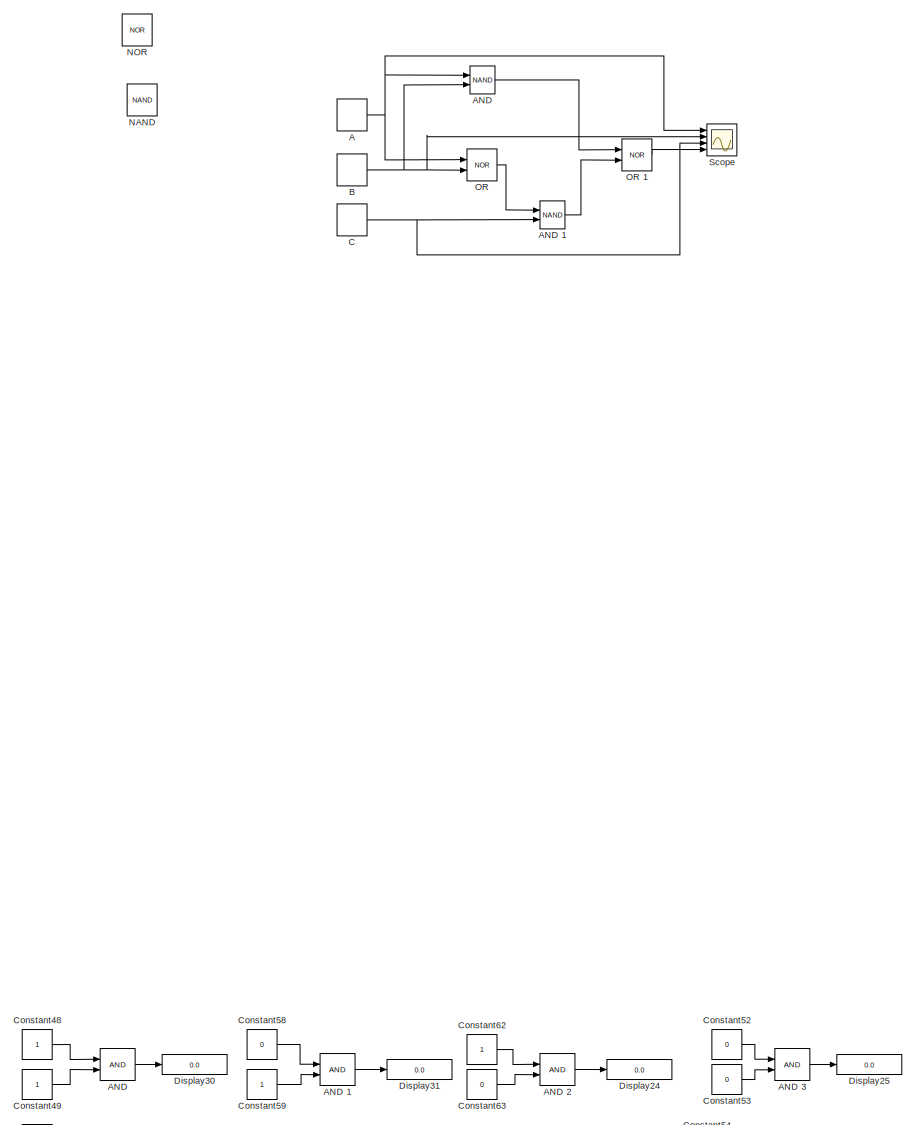
[diagram: root canvas - part 1/3, left side, full height]
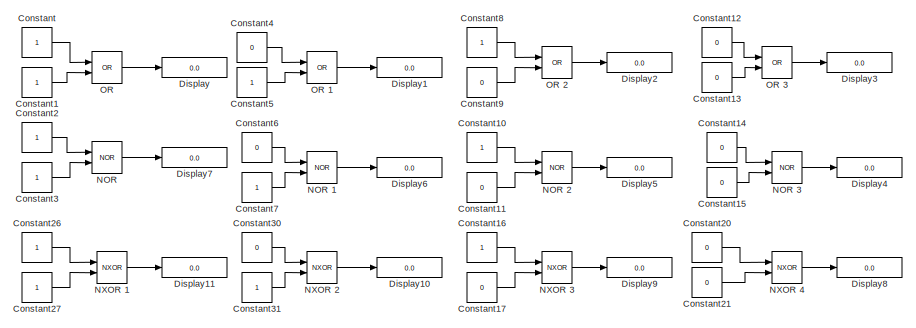
[diagram: root canvas - part 2/3, bottom right region]
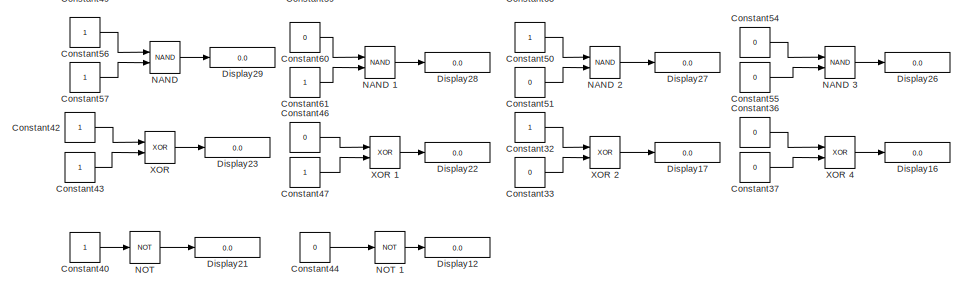
[diagram: root canvas - part 3/3, bottom left region]
MODEL slx_ea010f9fa80d
KIND model
CONFIG AbsTol = auto
CONFIG EnableMultiTasking = off
CONFIG FixedStep = auto
CONFIG MaxStep = auto
CONFIG MinStep = auto
CONFIG RelTol = 1e-3
CONFIG SampleTimeConstraint = Unconstrained
CONFIG Solver = VariableStepAuto
CONFIG SolverName = VariableStepAuto
CONFIG StartTime = 0.0
CONFIG StopTime = 10.0
BLOCK [DiscretePulseGenerator] A
  Period = 10
  Ports = [0, 1]
  PulseType = Time based
  PulseWidth = 50
BLOCK [Logic] AND 
  AllPortsSameDT = off
  Commented = on
  IconShape = distinctive
  OutDataTypeStr = boolean
  Ports = [2, 1]
BLOCK [Logic] AND  
  AllPortsSameDT = off
  IconShape = distinctive
  Operator = NAND
  OutDataTypeStr = boolean
  Ports = [2, 1]
BLOCK [Logic] AND  1
  AllPortsSameDT = off
  IconShape = distinctive
  Operator = NAND
  OutDataTypeStr = boolean
  Ports = [2, 1]
BLOCK [Logic] AND 1
  AllPortsSameDT = off
  Commented = on
  IconShape = distinctive
  OutDataTypeStr = boolean
  Ports = [2, 1]
BLOCK [Logic] AND 2
  AllPortsSameDT = off
  Commented = on
  IconShape = distinctive
  OutDataTypeStr = boolean
  Ports = [2, 1]
BLOCK [Logic] AND 3
  AllPortsSameDT = off
  Commented = on
  IconShape = distinctive
  OutDataTypeStr = boolean
  Ports = [2, 1]
BLOCK [DiscretePulseGenerator] B
  Period = 5
  Ports = [0, 1]
  PulseType = Time based
  PulseWidth = 50
BLOCK [DiscretePulseGenerator] C
  Period = 2.5
  Ports = [0, 1]
  PulseType = Time based
  PulseWidth = 50
BLOCK [Constant] Constant
  Commented = on
BLOCK [Constant] Constant1
  Commented = on
BLOCK [Constant] Constant10
  Commented = on
BLOCK [Constant] Constant11
  Commented = on
  Value = 0
BLOCK [Constant] Constant12
  Commented = on
  Value = 0
BLOCK [Constant] Constant13
  Commented = on
  Value = 0
BLOCK [Constant] Constant14
  Commented = on
  Value = 0
BLOCK [Constant] Constant15
  Commented = on
  Value = 0
BLOCK [Constant] Constant16
  Commented = on
BLOCK [Constant] Constant17
  Commented = on
  Value = 0
BLOCK [Constant] Constant2
  Commented = on
BLOCK [Constant] Constant20
  Commented = on
  Value = 0
BLOCK [Constant] Constant21
  Commented = on
  Value = 0
BLOCK [Constant] Constant26
  Commented = on
BLOCK [Constant] Constant27
  Commented = on
BLOCK [Constant] Constant3
  Commented = on
BLOCK [Constant] Constant30
  Commented = on
  Value = 0
BLOCK [Constant] Constant31
  Commented = on
BLOCK [Constant] Constant32
  Commented = on
BLOCK [Constant] Constant33
  Commented = on
  Value = 0
BLOCK [Constant] Constant36
  Commented = on
  Value = 0
BLOCK [Constant] Constant37
  Commented = on
  Value = 0
BLOCK [Constant] Constant4
  Commented = on
  Value = 0
BLOCK [Constant] Constant40
  Commented = on
BLOCK [Constant] Constant42
  Commented = on
BLOCK [Constant] Constant43
  Commented = on
BLOCK [Constant] Constant44
  Commented = on
  Value = 0
BLOCK [Constant] Constant46
  Commented = on
  Value = 0
BLOCK [Constant] Constant47
  Commented = on
BLOCK [Constant] Constant48
  Commented = on
BLOCK [Constant] Constant49
  Commented = on
BLOCK [Constant] Constant5
  Commented = on
BLOCK [Constant] Constant50
  Commented = on
BLOCK [Constant] Constant51
  Commented = on
  Value = 0
BLOCK [Constant] Constant52
  Commented = on
  Value = 0
BLOCK [Constant] Constant53
  Commented = on
  Value = 0
BLOCK [Constant] Constant54
  Commented = on
  Value = 0
BLOCK [Constant] Constant55
  Commented = on
  Value = 0
BLOCK [Constant] Constant56
  Commented = on
BLOCK [Constant] Constant57
  Commented = on
BLOCK [Constant] Constant58
  Commented = on
  Value = 0
BLOCK [Constant] Constant59
  Commented = on
BLOCK [Constant] Constant6
  Commented = on
  Value = 0
BLOCK [Constant] Constant60
  Commented = on
  Value = 0
BLOCK [Constant] Constant61
  Commented = on
BLOCK [Constant] Constant62
  Commented = on
BLOCK [Constant] Constant63
  Commented = on
  Value = 0
BLOCK [Constant] Constant7
  Commented = on
BLOCK [Constant] Constant8
  Commented = on
BLOCK [Constant] Constant9
  Commented = on
  Value = 0
BLOCK [Display] Display
  Commented = on
  Decimation = 1
  Ports = [1]
BLOCK [Display] Display1
  Commented = on
  Decimation = 1
  Ports = [1]
BLOCK [Display] Display10
  Commented = on
  Decimation = 1
  Ports = [1]
BLOCK [Display] Display11
  Commented = on
  Decimation = 1
  Ports = [1]
BLOCK [Display] Display12
  Commented = on
  Decimation = 1
  Ports = [1]
BLOCK [Display] Display16
  Commented = on
  Decimation = 1
  Ports = [1]
BLOCK [Display] Display17
  Commented = on
  Decimation = 1
  Ports = [1]
BLOCK [Display] Display2
  Commented = on
  Decimation = 1
  Ports = [1]
BLOCK [Display] Display21
  Commented = on
  Decimation = 1
  Ports = [1]
BLOCK [Display] Display22
  Commented = on
  Decimation = 1
  Ports = [1]
BLOCK [Display] Display23
  Commented = on
  Decimation = 1
  Ports = [1]
BLOCK [Display] Display24
  Commented = on
  Decimation = 1
  Ports = [1]
BLOCK [Display] Display25
  Commented = on
  Decimation = 1
  Ports = [1]
BLOCK [Display] Display26
  Commented = on
  Decimation = 1
  Ports = [1]
BLOCK [Display] Display27
  Commented = on
  Decimation = 1
  Ports = [1]
BLOCK [Display] Display28
  Commented = on
  Decimation = 1
  Ports = [1]
BLOCK [Display] Display29
  Commented = on
  Decimation = 1
  Ports = [1]
BLOCK [Display] Display3
  Commented = on
  Decimation = 1
  Ports = [1]
BLOCK [Display] Display30
  Commented = on
  Decimation = 1
  Ports = [1]
BLOCK [Display] Display31
  Commented = on
  Decimation = 1
  Ports = [1]
BLOCK [Display] Display4
  Commented = on
  Decimation = 1
  Ports = [1]
BLOCK [Display] Display5
  Commented = on
  Decimation = 1
  Ports = [1]
BLOCK [Display] Display6
  Commented = on
  Decimation = 1
  Ports = [1]
BLOCK [Display] Display7
  Commented = on
  Decimation = 1
  Ports = [1]
BLOCK [Display] Display8
  Commented = on
  Decimation = 1
  Ports = [1]
BLOCK [Display] Display9
  Commented = on
  Decimation = 1
  Ports = [1]
BLOCK [Logic] NAND
  AllPortsSameDT = off
  IconShape = distinctive
  Operator = NAND
  OutDataTypeStr = boolean
  Ports = [2, 1]
BLOCK [Logic] NAND 
  AllPortsSameDT = off
  Commented = on
  IconShape = distinctive
  Operator = NAND
  OutDataTypeStr = boolean
  Ports = [2, 1]
BLOCK [Logic] NAND 1
  AllPortsSameDT = off
  Commented = on
  IconShape = distinctive
  Operator = NAND
  OutDataTypeStr = boolean
  Ports = [2, 1]
BLOCK [Logic] NAND 2
  AllPortsSameDT = off
  Commented = on
  IconShape = distinctive
  Operator = NAND
  OutDataTypeStr = boolean
  Ports = [2, 1]
BLOCK [Logic] NAND 3
  AllPortsSameDT = off
  Commented = on
  IconShape = distinctive
  Operator = NAND
  OutDataTypeStr = boolean
  Ports = [2, 1]
BLOCK [Logic] NOR
  AllPortsSameDT = off
  IconShape = distinctive
  Operator = NOR
  OutDataTypeStr = boolean
  Ports = [2, 1]
BLOCK [Logic] NOR 
  AllPortsSameDT = off
  Commented = on
  IconShape = distinctive
  Operator = NOR
  OutDataTypeStr = boolean
  Ports = [2, 1]
BLOCK [Logic] NOR 1
  AllPortsSameDT = off
  Commented = on
  IconShape = distinctive
  Operator = NOR
  OutDataTypeStr = boolean
  Ports = [2, 1]
BLOCK [Logic] NOR 2
  AllPortsSameDT = off
  Commented = on
  IconShape = distinctive
  Operator = NOR
  OutDataTypeStr = boolean
  Ports = [2, 1]
BLOCK [Logic] NOR 3
  AllPortsSameDT = off
  Commented = on
  IconShape = distinctive
  Operator = NOR
  OutDataTypeStr = boolean
  Ports = [2, 1]
BLOCK [Logic] NOT 
  AllPortsSameDT = off
  Commented = on
  IconShape = distinctive
  Operator = NOT
  OutDataTypeStr = boolean
  Ports = [1, 1]
BLOCK [Logic] NOT 1
  AllPortsSameDT = off
  Commented = on
  IconShape = distinctive
  Operator = NOT
  OutDataTypeStr = boolean
  Ports = [1, 1]
BLOCK [Logic] NXOR 1
  AllPortsSameDT = off
  Commented = on
  IconShape = distinctive
  Operator = NXOR
  OutDataTypeStr = boolean
  Ports = [2, 1]
BLOCK [Logic] NXOR 2
  AllPortsSameDT = off
  Commented = on
  IconShape = distinctive
  Operator = NXOR
  OutDataTypeStr = boolean
  Ports = [2, 1]
BLOCK [Logic] NXOR 3
  AllPortsSameDT = off
  Commented = on
  IconShape = distinctive
  Operator = NXOR
  OutDataTypeStr = boolean
  Ports = [2, 1]
BLOCK [Logic] NXOR 4
  AllPortsSameDT = off
  Commented = on
  IconShape = distinctive
  Operator = NXOR
  OutDataTypeStr = boolean
  Ports = [2, 1]
BLOCK [Logic] OR 
  AllPortsSameDT = off
  Commented = on
  IconShape = distinctive
  Operator = OR
  OutDataTypeStr = boolean
  Ports = [2, 1]
BLOCK [Logic] OR  
  AllPortsSameDT = off
  IconShape = distinctive
  Operator = NOR
  OutDataTypeStr = boolean
  Ports = [2, 1]
BLOCK [Logic] OR  1
  AllPortsSameDT = off
  IconShape = distinctive
  Operator = NOR
  OutDataTypeStr = boolean
  Ports = [2, 1]
BLOCK [Logic] OR 1
  AllPortsSameDT = off
  Commented = on
  IconShape = distinctive
  Operator = OR
  OutDataTypeStr = boolean
  Ports = [2, 1]
BLOCK [Logic] OR 2
  AllPortsSameDT = off
  Commented = on
  IconShape = distinctive
  Operator = OR
  OutDataTypeStr = boolean
  Ports = [2, 1]
BLOCK [Logic] OR 3
  AllPortsSameDT = off
  Commented = on
  IconShape = distinctive
  Operator = OR
  OutDataTypeStr = boolean
  Ports = [2, 1]
BLOCK [Scope] Scope
  Floating = off
  NumInputPorts = 4
  Ports = [4]
  ScopeSpecificationString = Simulink.scopes.TimeScopeBlockCfg('CurrentConfiguration', extmgr.ConfigurationSet(extmgr.Configuration('Core','General UI',true),extmgr.Configuration('Core','Source UI',true),extmgr.Configuration('Sources','WiredSimulink',true),extmgr.Configuration('Visuals','Time Domain',true,'SerializedDisplays',{struct('MinYLimReal','-0.125','MaxYLimReal','1.125','YLabelReal','','MinYLimMag','0.00000','MaxYLimM...<+3858ch>
BLOCK [Logic] XOR 
  AllPortsSameDT = off
  Commented = on
  IconShape = distinctive
  Operator = XOR
  OutDataTypeStr = boolean
  Ports = [2, 1]
BLOCK [Logic] XOR 1
  AllPortsSameDT = off
  Commented = on
  IconShape = distinctive
  Operator = XOR
  OutDataTypeStr = boolean
  Ports = [2, 1]
BLOCK [Logic] XOR 2
  AllPortsSameDT = off
  Commented = on
  IconShape = distinctive
  Operator = XOR
  OutDataTypeStr = boolean
  Ports = [2, 1]
BLOCK [Logic] XOR 4
  AllPortsSameDT = off
  Commented = on
  IconShape = distinctive
  Operator = XOR
  OutDataTypeStr = boolean
  Ports = [2, 1]
NET A:1 -> AND  :1, OR  :1, Scope:1
LINE AND  1:1 -> OR  1:2
LINE AND  :1 -> OR  1:1
LINE AND 1:1 -> Display31:1
LINE AND 2:1 -> Display24:1
LINE AND 3:1 -> Display25:1
LINE AND :1 -> Display30:1
NET B:1 -> AND  :2, OR  :2, Scope:2
NET C:1 -> AND  1:2, Scope:3
LINE Constant10:1 -> NOR 2:1
LINE Constant11:1 -> NOR 2:2
LINE Constant12:1 -> OR 3:1
LINE Constant13:1 -> OR 3:2
LINE Constant14:1 -> NOR 3:1
LINE Constant15:1 -> NOR 3:2
LINE Constant16:1 -> NXOR 3:1
LINE Constant17:1 -> NXOR 3:2
LINE Constant1:1 -> OR :2
LINE Constant20:1 -> NXOR 4:1
LINE Constant21:1 -> NXOR 4:2
LINE Constant26:1 -> NXOR 1:1
LINE Constant27:1 -> NXOR 1:2
LINE Constant2:1 -> NOR :1
LINE Constant30:1 -> NXOR 2:1
LINE Constant31:1 -> NXOR 2:2
LINE Constant32:1 -> XOR 2:1
LINE Constant33:1 -> XOR 2:2
LINE Constant36:1 -> XOR 4:1
LINE Constant37:1 -> XOR 4:2
LINE Constant3:1 -> NOR :2
LINE Constant40:1 -> NOT :1
LINE Constant42:1 -> XOR :1
LINE Constant43:1 -> XOR :2
LINE Constant44:1 -> NOT 1:1
LINE Constant46:1 -> XOR 1:1
LINE Constant47:1 -> XOR 1:2
LINE Constant48:1 -> AND :1
LINE Constant49:1 -> AND :2
LINE Constant4:1 -> OR 1:1
LINE Constant50:1 -> NAND 2:1
LINE Constant51:1 -> NAND 2:2
LINE Constant52:1 -> AND 3:1
LINE Constant53:1 -> AND 3:2
LINE Constant54:1 -> NAND 3:1
LINE Constant55:1 -> NAND 3:2
LINE Constant56:1 -> NAND :1
LINE Constant57:1 -> NAND :2
LINE Constant58:1 -> AND 1:1
LINE Constant59:1 -> AND 1:2
LINE Constant5:1 -> OR 1:2
LINE Constant60:1 -> NAND 1:1
LINE Constant61:1 -> NAND 1:2
LINE Constant62:1 -> AND 2:1
LINE Constant63:1 -> AND 2:2
LINE Constant6:1 -> NOR 1:1
LINE Constant7:1 -> NOR 1:2
LINE Constant8:1 -> OR 2:1
LINE Constant9:1 -> OR 2:2
LINE Constant:1 -> OR :1
LINE NAND 1:1 -> Display28:1
LINE NAND 2:1 -> Display27:1
LINE NAND 3:1 -> Display26:1
LINE NAND :1 -> Display29:1
LINE NOR 1:1 -> Display6:1
LINE NOR 2:1 -> Display5:1
LINE NOR 3:1 -> Display4:1
LINE NOR :1 -> Display7:1
LINE NOT 1:1 -> Display12:1
LINE NOT :1 -> Display21:1
LINE NXOR 1:1 -> Display11:1
LINE NXOR 2:1 -> Display10:1
LINE NXOR 3:1 -> Display9:1
LINE NXOR 4:1 -> Display8:1
LINE OR  1:1 -> Scope:4
LINE OR  :1 -> AND  1:1
LINE OR 1:1 -> Display1:1
LINE OR 2:1 -> Display2:1
LINE OR 3:1 -> Display3:1
LINE OR :1 -> Display:1
LINE XOR 1:1 -> Display22:1
LINE XOR 2:1 -> Display17:1
LINE XOR 4:1 -> Display16:1
LINE XOR :1 -> Display23:1
note: NET lines group one-source signal fan-out (src -> all destinations, sorted); 1:1 wires keep LINE
